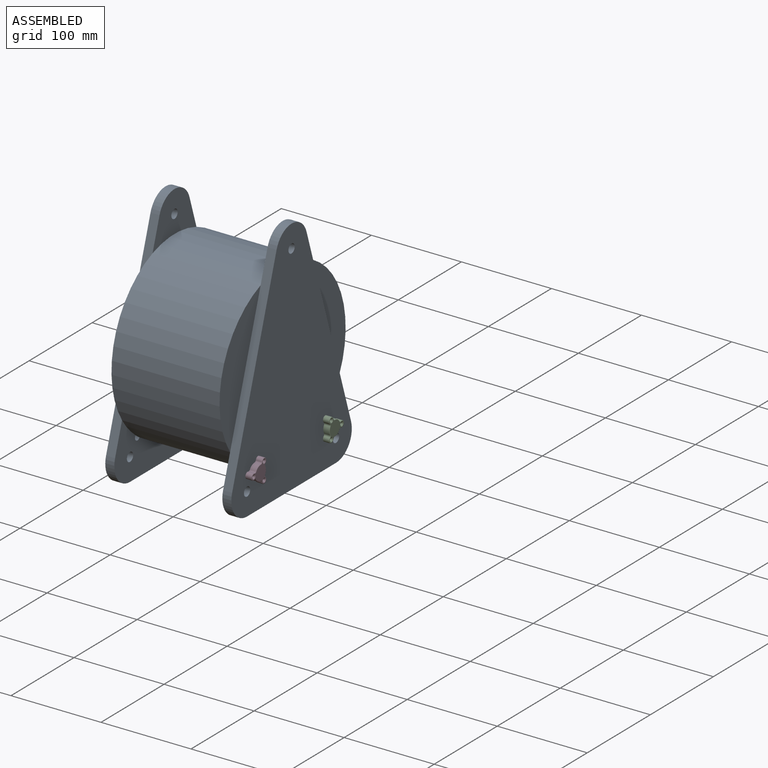
[diagram: assembled view]
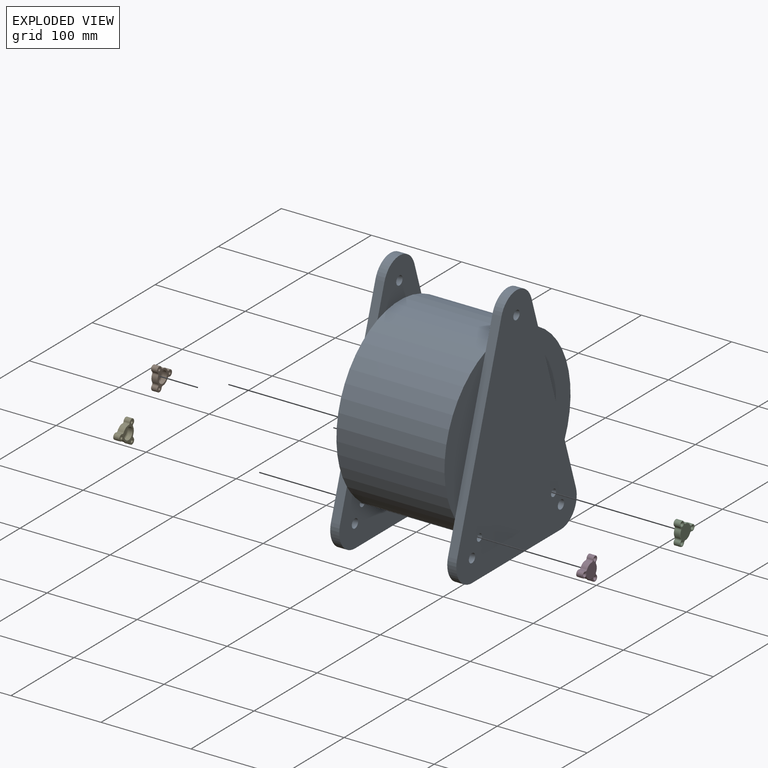
[diagram: exploded view]
GUIDED TOUR — MATED ASSEMBLY (Onshape document 58fb011b6bf305112ffab014, AutoMate assembly 58fb011b6bf305112ffab014_e438020ce8ab903a97dd2762_552a6a392bd03f7f23723d46_default)

This assembly has 5 components, labeled P0..P4 below (a component is one placed occurrence of a part; the same part can appear more than once), held together by 4 mates. A mate is a constraint between two components; its type names the relative motion it leaves free:
  FASTENED — locks the two components together rigidly (no relative motion).
Axis/direction vectors are unit vectors and 'through' points are millimeter coordinates, both in the assembly's world frame.

MATES
  1. FASTENED "Fastened 4": P4 <-> P0, direction (1.000, 0.000, 0.000) through (-78.43, -58.79, -88.06) mm
  2. FASTENED "Fastened 1": P3 <-> P0, direction (-1.000, 0.000, 0.000) through (61.57, -58.79, -88.06) mm
  3. FASTENED "Fastened 3": P1 <-> P0, direction (1.000, 0.000, 0.000) through (-78.43, 58.77, -88.06) mm
  4. FASTENED "Fastened 2": P2 <-> P0, direction (-1.000, 0.000, 0.000) through (61.57, 58.77, -88.06) mm

ASSEMBLY ORDER
  1. P4 — the base component [order verified]
  2. P1 [order verified]
  3. P0 [order verified]
  4. P3 [order verified]
  5. P2 [order verified]
Order-tag legend:
  [order verified] — this step's position reverses a verified removal order: the component was checked to insert without passing through the ones already placed.

Of the 5 components, 5 carry the full construction recipe — the FeatureScript program that regenerates the part's solid from scratch; the rest are supplied as boundary geometry only.
Each toured component is shown spotlighted twice — in the assembled view, then in the exploded view, where a leader line traces a displaced component back to its assembled socket (saturated green if recipe-attached, orange if geometry-only; every other component desaturated gray) — followed by its recipe or geometry summary and the mates that hold it.
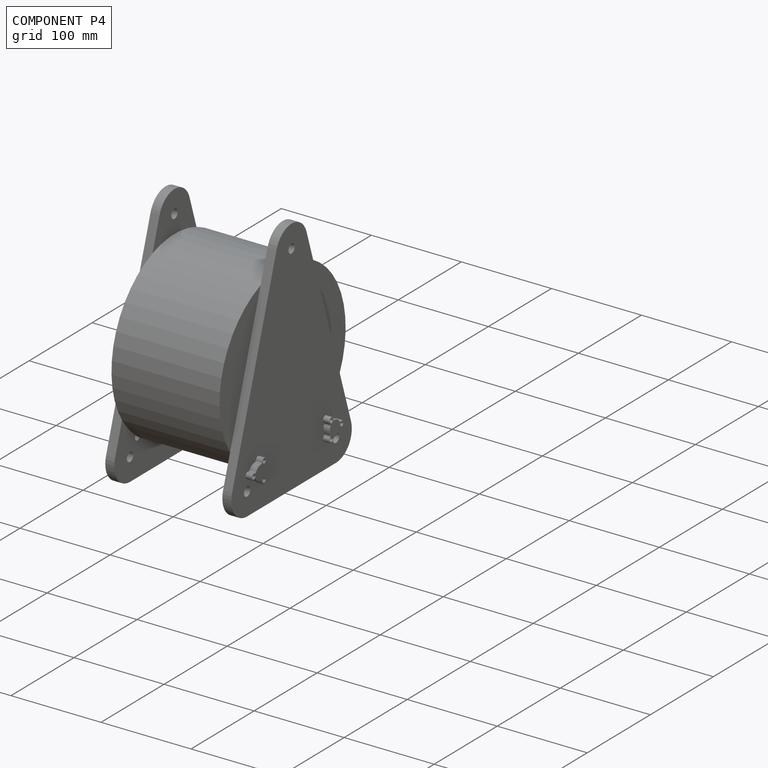
[diagram: component P4 — assembled]
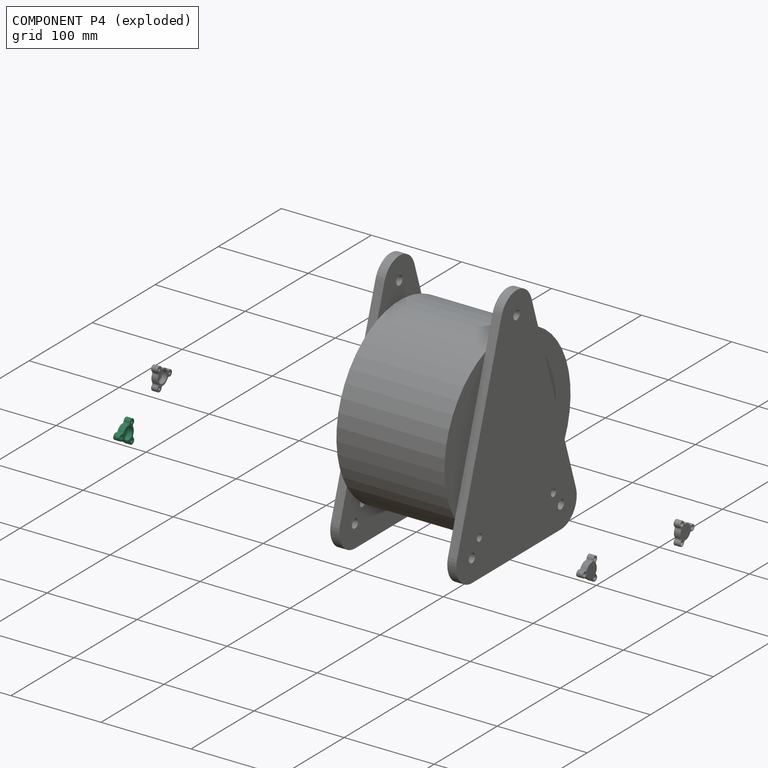
[diagram: component P4 — exploded]
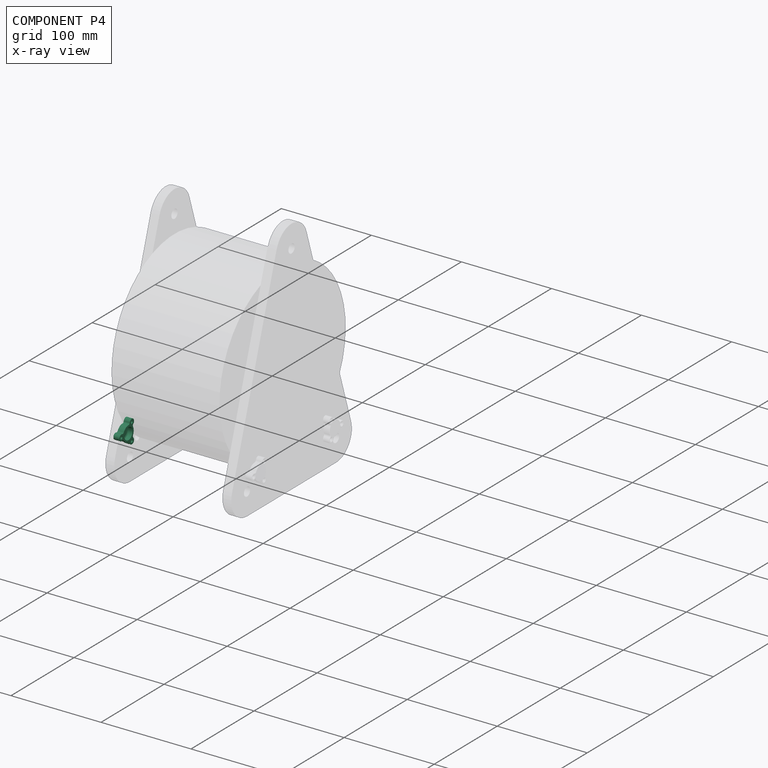
[diagram: component P4 — x-ray view]
COMPONENT P4 — same part as P1 (CADFS 00729353); its construction recipe is shown at P1.
Held by: FASTENED mate "Fastened 4" to P0.
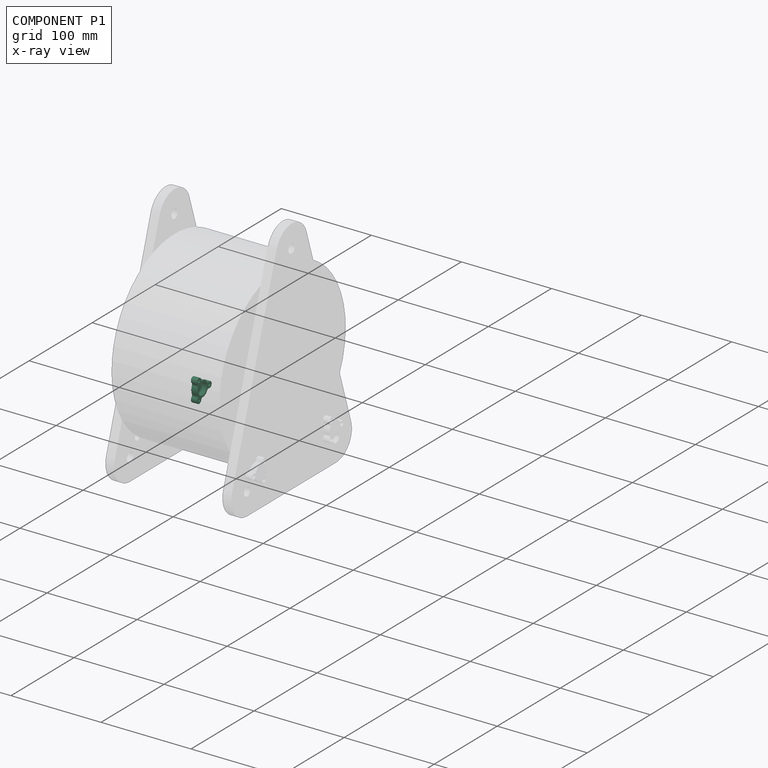
[diagram: component P1 — x-ray view]
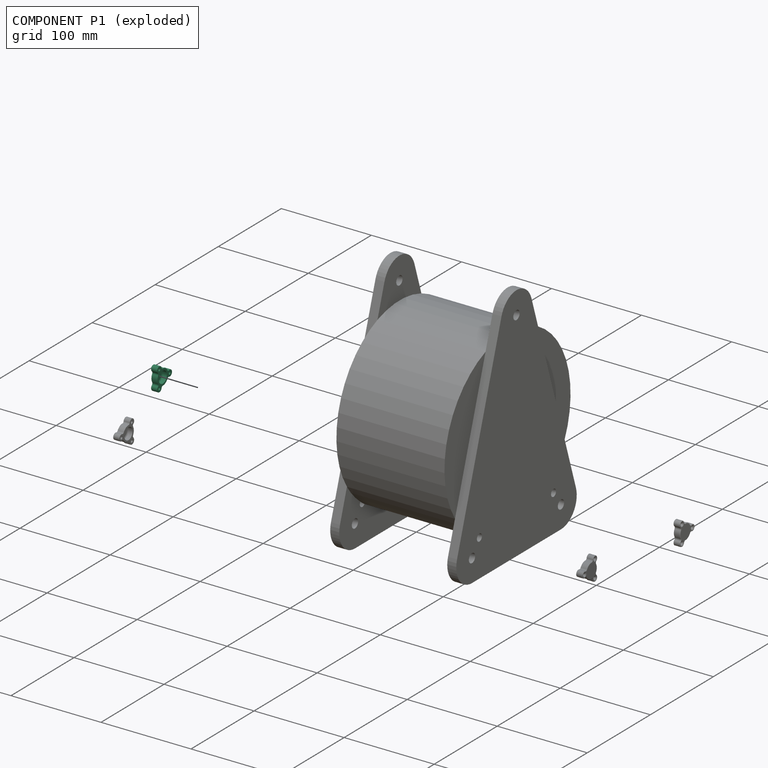
[diagram: component P1 — exploded]
COMPONENT P1 — recipe-attached (CADFS 00729353, mesh-verified: the recipe's output STEP matches this component's geometry to below the mesh-comparison resolution (tessellation chordal tolerance ~0.0536 mm)).
Held by: FASTENED mate "Fastened 3" to P0.
Construction recipe (FeatureScript — the CAD program that rebuilds this solid; sketch coordinates are in the units given by the * unit suffixes, e.g. mm):

FeatureScript 1511;
import(path : "onshape/std/geometry.fs", version : "1511.0");
import(path : "onshape/std/common.fs", version : "1511.0");
const mm = millimeter;
const VERTEX = EntityType.VERTEX;
const EDGE = EntityType.EDGE;
const FACE = EntityType.FACE;
const BODY = EntityType.BODY;
function v(x, y){return vector(x, y);}
function OD(order){return orderDisambiguation(order);}
function OSD(set){return originalSetDisambiguation(set);}
function TD(topology){return topologyDisambiguation(topology);}
function TDD(query){return trueDependencyDisambiguation(query);}
function sQuery(a, b, c) {return sketchEntityQuery(a, b, c);}

annotation { "Feature Type Name" : "Feature", "Feature Type Description" : "" }
export const myFeature = defineFeature(function(context is Context, id is Id, definition is map)
    precondition{}
    {
        {
            var Q0;
            Q0=qCreatedBy(makeId("Right.planeOp"),FACE);
            var sketch = newSketch(context, id + "F0", { "sketchPlane" : qUnion([Q0])});
            skLineSegment(sketch, "E0", {"start": v(-8.5, 0) * mm, "end": v(-8.5, 7) * mm});
            skLineSegment(sketch, "E1", {"start": v(-8.5, 7) * mm, "end": v(0, 7) * mm});
            skLineSegment(sketch, "E2", {"start": v(0, 7) * mm, "end": v(0, 5.5) * mm});
            skLineSegment(sketch, "E3", {"start": v(-6, 5) * mm, "end": v(-6.5, 5) * mm});
            skLineSegment(sketch, "E4", {"start": v(-6.5, 5) * mm, "end": v(-6.5, 0) * mm});
            skLineSegment(sketch, "E5", {"start": v(-6.5, 0) * mm, "end": v(-8.5, 0) * mm});
            skLineSegment(sketch, "E6.top", {"start": v(-6, 5.5) * mm, "end": v(0, 5.5) * mm});
            skLineSegment(sketch, "E6.left", {"start": v(-6, 5) * mm, "end": v(-6, 5.5) * mm});
            skSolve(sketch);
        }
        {
            var Q0;
            Q0=makeQuery(id+"F0.imprint","IMPRINT",FACE,{"disambiguationData":[TD([[makeQuery(id+"F0.imprint","IMPRINT",EDGE,{"derivedFrom":sQuery(id+"F0.wireOp",EDGE,"E0")}),-1.0]])]});
            var Q1;
            Q1=sQuery(id+"F0.wireOp",EDGE,"E2");
            revolve(context, id + "F1", {"surfaceOperationType" : NewSurfaceOperationType.NEW, "entities" : qUnion([Q0]), "axis" : qUnion([Q1]), "revolveType" : RevolveType.FULL});
        }
        {
            var Q0;
            Q0=qCreatedBy(makeId("Top.planeOp"),FACE);
            var sketch = newSketch(context, id + "F2", { "sketchPlane" : qUnion([Q0])});
            skLineSegment(sketch, "E7", {"start": v(0, 11) * mm, "end": v(0, -13.89) * mm, "construction": true});
            skCircle(sketch, "E8", {"center": v(0, 11) * mm, "radius": 3.5 * mm});
            skCircle(sketch, "E9", {"center": v(0, 11) * mm, "radius": 1.5 * mm});
            skPoint(sketch, "E10", {"position": v(0, 0) * mm});
            skCircle(sketch, "E11.1.0", {"center": v(-9.53, -5.5) * mm, "radius": 3.5 * mm});
            skCircle(sketch, "E11.1.1", {"center": v(-9.53, -5.5) * mm, "radius": 1.5 * mm});
            skCircle(sketch, "E11.2.0", {"center": v(9.53, -5.5) * mm, "radius": 3.5 * mm});
            skCircle(sketch, "E11.2.1", {"center": v(9.53, -5.5) * mm, "radius": 1.5 * mm});
            skSolve(sketch);
        }
        {
            var Q0;
            Q0=makeQuery(id+"F2.imprint","IMPRINT",FACE,{"disambiguationData":[TD([[makeQuery(id+"F2.imprint","IMPRINT",EDGE,{"derivedFrom":sQuery(id+"F2.wireOp",EDGE,"E8")}),1.0]])]});
            var Q1;
            Q1=makeQuery(id+"F2.imprint","IMPRINT",FACE,{"disambiguationData":[TD([[makeQuery(id+"F2.imprint","IMPRINT",EDGE,{"derivedFrom":sQuery(id+"F2.wireOp",EDGE,"E11.1.0")}),1.0]])]});
            var Q2;
            Q2=makeQuery(id+"F2.imprint","IMPRINT",FACE,{"disambiguationData":[TD([[makeQuery(id+"F2.imprint","IMPRINT",EDGE,{"derivedFrom":sQuery(id+"F2.wireOp",EDGE,"E11.2.0")}),1.0]])]});
            extrude(context, id + "F3", {"entities" : qUnion([Q0, Q1, Q2]), "operationType" : NewBodyOperationType.ADD, "depth" : 7 * mm, "offsetDistance" : 25 * mm});
        }
        {
            var Q0;
            Q0=makeQuery(id+"F3.opExtrude","CAP_EDGE",EDGE,{"disambiguationData":[OSD([sQuery(id+"F2.wireOp",EDGE,"E9")])],"isStart":false});
            var Q1;
            Q1=makeQuery(id+"F3.opExtrude","CAP_EDGE",EDGE,{"disambiguationData":[OSD([sQuery(id+"F2.wireOp",EDGE,"E11.1.1")])],"isStart":false});
            var Q2;
            Q2=makeQuery(id+"F3.opExtrude","CAP_EDGE",EDGE,{"disambiguationData":[OSD([sQuery(id+"F2.wireOp",EDGE,"E11.2.1")])],"isStart":false});
            chamfer(context, id + "F4", {"entities" : qUnion([Q0, Q1, Q2]), "width" : 1 * mm, "tangentPropagation" : true});
        }
        {
            var Q0;
            Q0=makeQuery(id+"F3.boolean.opBoolean","INTERSECT",EDGE,{"disambiguationData":[OD(0.0)],"derivedFrom":[makeQuery(id+"F1.opRevolve","SWEPT_FACE",FACE,{"disambiguationData":[OSD([sQuery(id+"F0.wireOp",EDGE,"E0")])]}),makeQuery(id+"F3.opExtrude","SWEPT_FACE",FACE,{"disambiguationData":[OSD([sQuery(id+"F2.wireOp",EDGE,"E8")])]})]});
            var Q1;
            Q1=makeQuery(id+"F3.boolean.opBoolean","INTERSECT",EDGE,{"disambiguationData":[OD(0.0)],"derivedFrom":[makeQuery(id+"F1.opRevolve","SWEPT_FACE",FACE,{"disambiguationData":[OSD([sQuery(id+"F0.wireOp",EDGE,"E0")])]}),makeQuery(id+"F3.opExtrude","SWEPT_FACE",FACE,{"disambiguationData":[OSD([sQuery(id+"F2.wireOp",EDGE,"E11.1.0")])]})]});
            var Q2;
            Q2=makeQuery(id+"F3.boolean.opBoolean","INTERSECT",EDGE,{"disambiguationData":[OD(1.0)],"derivedFrom":[makeQuery(id+"F1.opRevolve","SWEPT_FACE",FACE,{"disambiguationData":[OSD([sQuery(id+"F0.wireOp",EDGE,"E0")])]}),makeQuery(id+"F3.opExtrude","SWEPT_FACE",FACE,{"disambiguationData":[OSD([sQuery(id+"F2.wireOp",EDGE,"E11.1.0")])]})]});
            var Q3;
            Q3=makeQuery(id+"F3.boolean.opBoolean","INTERSECT",EDGE,{"disambiguationData":[OD(1.0)],"derivedFrom":[makeQuery(id+"F1.opRevolve","SWEPT_FACE",FACE,{"disambiguationData":[OSD([sQuery(id+"F0.wireOp",EDGE,"E0")])]}),makeQuery(id+"F3.opExtrude","SWEPT_FACE",FACE,{"disambiguationData":[OSD([sQuery(id+"F2.wireOp",EDGE,"E11.2.0")])]})]});
            var Q4;
            Q4=makeQuery(id+"F3.boolean.opBoolean","INTERSECT",EDGE,{"disambiguationData":[OD(0.0)],"derivedFrom":[makeQuery(id+"F1.opRevolve","SWEPT_FACE",FACE,{"disambiguationData":[OSD([sQuery(id+"F0.wireOp",EDGE,"E0")])]}),makeQuery(id+"F3.opExtrude","SWEPT_FACE",FACE,{"disambiguationData":[OSD([sQuery(id+"F2.wireOp",EDGE,"E11.2.0")])]})]});
            var Q5;
            Q5=makeQuery(id+"F3.boolean.opBoolean","INTERSECT",EDGE,{"disambiguationData":[OD(1.0)],"derivedFrom":[makeQuery(id+"F1.opRevolve","SWEPT_FACE",FACE,{"disambiguationData":[OSD([sQuery(id+"F0.wireOp",EDGE,"E0")])]}),makeQuery(id+"F3.opExtrude","SWEPT_FACE",FACE,{"disambiguationData":[OSD([sQuery(id+"F2.wireOp",EDGE,"E8")])]})]});
            fillet(context, id + "F5", {"entities" : qUnion([Q0, Q1, Q2, Q3, Q4, Q5]), "radius" : 2 * mm, "tangentPropagation" : true, "allowEdgeOverflow" : false});
        }
        {
            var Q0;
            {var subQ0=sQuery(id+"F2.wireOp",EDGE,"E11.1.0");var subQ1=sQuery(id+"F0.wireOp",EDGE,"E1");var subQ2=sQuery(id+"F0.wireOp",EDGE,"E0");var subQ3=sQuery(id+"F2.wireOp",EDGE,"E11.2.0");Q0=makeQuery(id+"F3.boolean.opBoolean","SPLIT",EDGE,{"disambiguationData":[TD([makeQuery(id+"F1.opRevolve","SWEPT_FACE",FACE,{"disambiguationData":[OSD([subQ2])]}),makeQuery(id+"F1.opRevolve","SWEPT_FACE",FACE,{"disambiguationData":[OSD([subQ1])]}),makeQuery(id+"F3.opExtrude","CAP_FACE",FACE,{"disambiguationData":[OSD([sQuery(id+"F2.wireOp",EDGE,"E8"),sQuery(id+"F2.wireOp",EDGE,"E9")])],"isStart":false}),makeQuery(id+"F3.opExtrude","SWEPT_FACE",FACE,{"disambiguationData":[OSD([subQ0])]}),makeQuery(id+"F3.opExtrude","CAP_FACE",FACE,{"disambiguationData":[OSD([subQ0,sQuery(id+"F2.wireOp",EDGE,"E11.1.1")])],"isStart":false}),makeQuery(id+"F3.opExtrude","SWEPT_FACE",FACE,{"disambiguationData":[OSD([subQ3])]}),makeQuery(id+"F3.opExtrude","CAP_FACE",FACE,{"disambiguationData":[OSD([subQ3,sQuery(id+"F2.wireOp",EDGE,"E11.2.1")])],"isStart":false})])],"derivedFrom":makeQuery(id+"F1.opRevolve","SWEPT_EDGE",EDGE,{"disambiguationData":[OSD([subQ2,subQ1])]})});}
            var Q1;
            {var subQ0=sQuery(id+"F2.wireOp",EDGE,"E11.1.0");Q1=makeQuery(id+"F5.opFillet","BLEND_EDGE",EDGE,{"blendedFrom":[makeQuery(id+"F3.boolean.opBoolean","INTERSECT",EDGE,{"disambiguationData":[OD(1.0)],"derivedFrom":[makeQuery(id+"F1.opRevolve","SWEPT_FACE",FACE,{"disambiguationData":[OSD([sQuery(id+"F0.wireOp",EDGE,"E0")])]}),makeQuery(id+"F3.opExtrude","SWEPT_FACE",FACE,{"disambiguationData":[OSD([subQ0])]})]}),makeQuery(id+"F3.boolean.opBoolean","MERGE",FACE,{"derivedFrom":[makeQuery(id+"F1.opRevolve","SWEPT_FACE",FACE,{"disambiguationData":[OSD([sQuery(id+"F0.wireOp",EDGE,"E1")])]}),makeQuery(id+"F3.opExtrude","CAP_FACE",FACE,{"disambiguationData":[OSD([sQuery(id+"F2.wireOp",EDGE,"E8"),sQuery(id+"F2.wireOp",EDGE,"E9")])],"isStart":false}),makeQuery(id+"F3.opExtrude","CAP_FACE",FACE,{"disambiguationData":[OSD([subQ0,sQuery(id+"F2.wireOp",EDGE,"E11.1.1")])],"isStart":false}),makeQuery(id+"F3.opExtrude","CAP_FACE",FACE,{"disambiguationData":[OSD([sQuery(id+"F2.wireOp",EDGE,"E11.2.0"),sQuery(id+"F2.wireOp",EDGE,"E11.2.1")])],"isStart":false})]})],"blendedInto":[makeQuery(id+"F3.boolean.opBoolean","MERGE",FACE,{"derivedFrom":[makeQuery(id+"F1.opRevolve","SWEPT_FACE",FACE,{"disambiguationData":[OSD([sQuery(id+"F0.wireOp",EDGE,"E1")])]}),makeQuery(id+"F3.opExtrude","CAP_FACE",FACE,{"disambiguationData":[OSD([sQuery(id+"F2.wireOp",EDGE,"E8"),sQuery(id+"F2.wireOp",EDGE,"E9")])],"isStart":false}),makeQuery(id+"F3.opExtrude","CAP_FACE",FACE,{"disambiguationData":[OSD([subQ0,sQuery(id+"F2.wireOp",EDGE,"E11.1.1")])],"isStart":false}),makeQuery(id+"F3.opExtrude","CAP_FACE",FACE,{"disambiguationData":[OSD([sQuery(id+"F2.wireOp",EDGE,"E11.2.0"),sQuery(id+"F2.wireOp",EDGE,"E11.2.1")])],"isStart":false})]})]});}
            var Q2;
            Q2=makeQuery(id+"F3.opExtrude","CAP_EDGE",EDGE,{"disambiguationData":[OSD([sQuery(id+"F2.wireOp",EDGE,"E11.1.0")])],"isStart":false});
            var Q3;
            {var subQ0=sQuery(id+"F2.wireOp",EDGE,"E11.1.0");Q3=makeQuery(id+"F5.opFillet","BLEND_EDGE",EDGE,{"blendedFrom":[makeQuery(id+"F3.boolean.opBoolean","INTERSECT",EDGE,{"disambiguationData":[OD(0.0)],"derivedFrom":[makeQuery(id+"F1.opRevolve","SWEPT_FACE",FACE,{"disambiguationData":[OSD([sQuery(id+"F0.wireOp",EDGE,"E0")])]}),makeQuery(id+"F3.opExtrude","SWEPT_FACE",FACE,{"disambiguationData":[OSD([subQ0])]})]}),makeQuery(id+"F3.boolean.opBoolean","MERGE",FACE,{"derivedFrom":[makeQuery(id+"F1.opRevolve","SWEPT_FACE",FACE,{"disambiguationData":[OSD([sQuery(id+"F0.wireOp",EDGE,"E1")])]}),makeQuery(id+"F3.opExtrude","CAP_FACE",FACE,{"disambiguationData":[OSD([sQuery(id+"F2.wireOp",EDGE,"E8"),sQuery(id+"F2.wireOp",EDGE,"E9")])],"isStart":false}),makeQuery(id+"F3.opExtrude","CAP_FACE",FACE,{"disambiguationData":[OSD([subQ0,sQuery(id+"F2.wireOp",EDGE,"E11.1.1")])],"isStart":false}),makeQuery(id+"F3.opExtrude","CAP_FACE",FACE,{"disambiguationData":[OSD([sQuery(id+"F2.wireOp",EDGE,"E11.2.0"),sQuery(id+"F2.wireOp",EDGE,"E11.2.1")])],"isStart":false})]})],"blendedInto":[makeQuery(id+"F3.boolean.opBoolean","MERGE",FACE,{"derivedFrom":[makeQuery(id+"F1.opRevolve","SWEPT_FACE",FACE,{"disambiguationData":[OSD([sQuery(id+"F0.wireOp",EDGE,"E1")])]}),makeQuery(id+"F3.opExtrude","CAP_FACE",FACE,{"disambiguationData":[OSD([sQuery(id+"F2.wireOp",EDGE,"E8"),sQuery(id+"F2.wireOp",EDGE,"E9")])],"isStart":false}),makeQuery(id+"F3.opExtrude","CAP_FACE",FACE,{"disambiguationData":[OSD([subQ0,sQuery(id+"F2.wireOp",EDGE,"E11.1.1")])],"isStart":false}),makeQuery(id+"F3.opExtrude","CAP_FACE",FACE,{"disambiguationData":[OSD([sQuery(id+"F2.wireOp",EDGE,"E11.2.0"),sQuery(id+"F2.wireOp",EDGE,"E11.2.1")])],"isStart":false})]})]});}
            var Q4;
            {var subQ0=sQuery(id+"F2.wireOp",EDGE,"E8");var subQ1=sQuery(id+"F0.wireOp",EDGE,"E1");var subQ2=sQuery(id+"F0.wireOp",EDGE,"E0");var subQ3=sQuery(id+"F2.wireOp",EDGE,"E11.1.0");Q4=makeQuery(id+"F3.boolean.opBoolean","SPLIT",EDGE,{"disambiguationData":[TD([makeQuery(id+"F1.opRevolve","SWEPT_FACE",FACE,{"disambiguationData":[OSD([subQ2])]}),makeQuery(id+"F1.opRevolve","SWEPT_FACE",FACE,{"disambiguationData":[OSD([subQ1])]}),makeQuery(id+"F3.opExtrude","SWEPT_FACE",FACE,{"disambiguationData":[OSD([subQ0])]}),makeQuery(id+"F3.opExtrude","CAP_FACE",FACE,{"disambiguationData":[OSD([subQ0,sQuery(id+"F2.wireOp",EDGE,"E9")])],"isStart":false}),makeQuery(id+"F3.opExtrude","SWEPT_FACE",FACE,{"disambiguationData":[OSD([subQ3])]}),makeQuery(id+"F3.opExtrude","CAP_FACE",FACE,{"disambiguationData":[OSD([subQ3,sQuery(id+"F2.wireOp",EDGE,"E11.1.1")])],"isStart":false}),makeQuery(id+"F3.opExtrude","CAP_FACE",FACE,{"disambiguationData":[OSD([sQuery(id+"F2.wireOp",EDGE,"E11.2.0"),sQuery(id+"F2.wireOp",EDGE,"E11.2.1")])],"isStart":false})])],"derivedFrom":makeQuery(id+"F1.opRevolve","SWEPT_EDGE",EDGE,{"disambiguationData":[OSD([subQ2,subQ1])]})});}
            var Q5;
            {var subQ0=sQuery(id+"F2.wireOp",EDGE,"E8");Q5=makeQuery(id+"F5.opFillet","BLEND_EDGE",EDGE,{"blendedFrom":[makeQuery(id+"F3.boolean.opBoolean","INTERSECT",EDGE,{"disambiguationData":[OD(0.0)],"derivedFrom":[makeQuery(id+"F1.opRevolve","SWEPT_FACE",FACE,{"disambiguationData":[OSD([sQuery(id+"F0.wireOp",EDGE,"E0")])]}),makeQuery(id+"F3.opExtrude","SWEPT_FACE",FACE,{"disambiguationData":[OSD([subQ0])]})]}),makeQuery(id+"F3.boolean.opBoolean","MERGE",FACE,{"derivedFrom":[makeQuery(id+"F1.opRevolve","SWEPT_FACE",FACE,{"disambiguationData":[OSD([sQuery(id+"F0.wireOp",EDGE,"E1")])]}),makeQuery(id+"F3.opExtrude","CAP_FACE",FACE,{"disambiguationData":[OSD([subQ0,sQuery(id+"F2.wireOp",EDGE,"E9")])],"isStart":false}),makeQuery(id+"F3.opExtrude","CAP_FACE",FACE,{"disambiguationData":[OSD([sQuery(id+"F2.wireOp",EDGE,"E11.1.0"),sQuery(id+"F2.wireOp",EDGE,"E11.1.1")])],"isStart":false}),makeQuery(id+"F3.opExtrude","CAP_FACE",FACE,{"disambiguationData":[OSD([sQuery(id+"F2.wireOp",EDGE,"E11.2.0"),sQuery(id+"F2.wireOp",EDGE,"E11.2.1")])],"isStart":false})]})],"blendedInto":[makeQuery(id+"F3.boolean.opBoolean","MERGE",FACE,{"derivedFrom":[makeQuery(id+"F1.opRevolve","SWEPT_FACE",FACE,{"disambiguationData":[OSD([sQuery(id+"F0.wireOp",EDGE,"E1")])]}),makeQuery(id+"F3.opExtrude","CAP_FACE",FACE,{"disambiguationData":[OSD([subQ0,sQuery(id+"F2.wireOp",EDGE,"E9")])],"isStart":false}),makeQuery(id+"F3.opExtrude","CAP_FACE",FACE,{"disambiguationData":[OSD([sQuery(id+"F2.wireOp",EDGE,"E11.1.0"),sQuery(id+"F2.wireOp",EDGE,"E11.1.1")])],"isStart":false}),makeQuery(id+"F3.opExtrude","CAP_FACE",FACE,{"disambiguationData":[OSD([sQuery(id+"F2.wireOp",EDGE,"E11.2.0"),sQuery(id+"F2.wireOp",EDGE,"E11.2.1")])],"isStart":false})]})]});}
            var Q6;
            Q6=makeQuery(id+"F3.opExtrude","CAP_EDGE",EDGE,{"disambiguationData":[OSD([sQuery(id+"F2.wireOp",EDGE,"E8")])],"isStart":false});
            var Q7;
            {var subQ0=sQuery(id+"F2.wireOp",EDGE,"E8");var subQ1=sQuery(id+"F0.wireOp",EDGE,"E1");var subQ2=sQuery(id+"F0.wireOp",EDGE,"E0");var subQ3=sQuery(id+"F2.wireOp",EDGE,"E11.2.0");Q7=makeQuery(id+"F3.boolean.opBoolean","SPLIT",EDGE,{"disambiguationData":[TD([makeQuery(id+"F1.opRevolve","SWEPT_FACE",FACE,{"disambiguationData":[OSD([subQ2])]}),makeQuery(id+"F1.opRevolve","SWEPT_FACE",FACE,{"disambiguationData":[OSD([subQ1])]}),makeQuery(id+"F3.opExtrude","SWEPT_FACE",FACE,{"disambiguationData":[OSD([subQ0])]}),makeQuery(id+"F3.opExtrude","CAP_FACE",FACE,{"disambiguationData":[OSD([subQ0,sQuery(id+"F2.wireOp",EDGE,"E9")])],"isStart":false}),makeQuery(id+"F3.opExtrude","CAP_FACE",FACE,{"disambiguationData":[OSD([sQuery(id+"F2.wireOp",EDGE,"E11.1.0"),sQuery(id+"F2.wireOp",EDGE,"E11.1.1")])],"isStart":false}),makeQuery(id+"F3.opExtrude","SWEPT_FACE",FACE,{"disambiguationData":[OSD([subQ3])]}),makeQuery(id+"F3.opExtrude","CAP_FACE",FACE,{"disambiguationData":[OSD([subQ3,sQuery(id+"F2.wireOp",EDGE,"E11.2.1")])],"isStart":false})])],"derivedFrom":makeQuery(id+"F1.opRevolve","SWEPT_EDGE",EDGE,{"disambiguationData":[OSD([subQ2,subQ1])]})});}
            var Q8;
            {var subQ0=sQuery(id+"F2.wireOp",EDGE,"E8");Q8=makeQuery(id+"F5.opFillet","BLEND_EDGE",EDGE,{"blendedFrom":[makeQuery(id+"F3.boolean.opBoolean","INTERSECT",EDGE,{"disambiguationData":[OD(1.0)],"derivedFrom":[makeQuery(id+"F1.opRevolve","SWEPT_FACE",FACE,{"disambiguationData":[OSD([sQuery(id+"F0.wireOp",EDGE,"E0")])]}),makeQuery(id+"F3.opExtrude","SWEPT_FACE",FACE,{"disambiguationData":[OSD([subQ0])]})]}),makeQuery(id+"F3.boolean.opBoolean","MERGE",FACE,{"derivedFrom":[makeQuery(id+"F1.opRevolve","SWEPT_FACE",FACE,{"disambiguationData":[OSD([sQuery(id+"F0.wireOp",EDGE,"E1")])]}),makeQuery(id+"F3.opExtrude","CAP_FACE",FACE,{"disambiguationData":[OSD([subQ0,sQuery(id+"F2.wireOp",EDGE,"E9")])],"isStart":false}),makeQuery(id+"F3.opExtrude","CAP_FACE",FACE,{"disambiguationData":[OSD([sQuery(id+"F2.wireOp",EDGE,"E11.1.0"),sQuery(id+"F2.wireOp",EDGE,"E11.1.1")])],"isStart":false}),makeQuery(id+"F3.opExtrude","CAP_FACE",FACE,{"disambiguationData":[OSD([sQuery(id+"F2.wireOp",EDGE,"E11.2.0"),sQuery(id+"F2.wireOp",EDGE,"E11.2.1")])],"isStart":false})]})],"blendedInto":[makeQuery(id+"F3.boolean.opBoolean","MERGE",FACE,{"derivedFrom":[makeQuery(id+"F1.opRevolve","SWEPT_FACE",FACE,{"disambiguationData":[OSD([sQuery(id+"F0.wireOp",EDGE,"E1")])]}),makeQuery(id+"F3.opExtrude","CAP_FACE",FACE,{"disambiguationData":[OSD([subQ0,sQuery(id+"F2.wireOp",EDGE,"E9")])],"isStart":false}),makeQuery(id+"F3.opExtrude","CAP_FACE",FACE,{"disambiguationData":[OSD([sQuery(id+"F2.wireOp",EDGE,"E11.1.0"),sQuery(id+"F2.wireOp",EDGE,"E11.1.1")])],"isStart":false}),makeQuery(id+"F3.opExtrude","CAP_FACE",FACE,{"disambiguationData":[OSD([sQuery(id+"F2.wireOp",EDGE,"E11.2.0"),sQuery(id+"F2.wireOp",EDGE,"E11.2.1")])],"isStart":false})]})]});}
            var Q9;
            {var subQ0=sQuery(id+"F2.wireOp",EDGE,"E11.2.0");Q9=makeQuery(id+"F5.opFillet","BLEND_EDGE",EDGE,{"blendedFrom":[makeQuery(id+"F3.boolean.opBoolean","INTERSECT",EDGE,{"disambiguationData":[OD(0.0)],"derivedFrom":[makeQuery(id+"F1.opRevolve","SWEPT_FACE",FACE,{"disambiguationData":[OSD([sQuery(id+"F0.wireOp",EDGE,"E0")])]}),makeQuery(id+"F3.opExtrude","SWEPT_FACE",FACE,{"disambiguationData":[OSD([subQ0])]})]}),makeQuery(id+"F3.boolean.opBoolean","MERGE",FACE,{"derivedFrom":[makeQuery(id+"F1.opRevolve","SWEPT_FACE",FACE,{"disambiguationData":[OSD([sQuery(id+"F0.wireOp",EDGE,"E1")])]}),makeQuery(id+"F3.opExtrude","CAP_FACE",FACE,{"disambiguationData":[OSD([sQuery(id+"F2.wireOp",EDGE,"E8"),sQuery(id+"F2.wireOp",EDGE,"E9")])],"isStart":false}),makeQuery(id+"F3.opExtrude","CAP_FACE",FACE,{"disambiguationData":[OSD([sQuery(id+"F2.wireOp",EDGE,"E11.1.0"),sQuery(id+"F2.wireOp",EDGE,"E11.1.1")])],"isStart":false}),makeQuery(id+"F3.opExtrude","CAP_FACE",FACE,{"disambiguationData":[OSD([subQ0,sQuery(id+"F2.wireOp",EDGE,"E11.2.1")])],"isStart":false})]})],"blendedInto":[makeQuery(id+"F3.boolean.opBoolean","MERGE",FACE,{"derivedFrom":[makeQuery(id+"F1.opRevolve","SWEPT_FACE",FACE,{"disambiguationData":[OSD([sQuery(id+"F0.wireOp",EDGE,"E1")])]}),makeQuery(id+"F3.opExtrude","CAP_FACE",FACE,{"disambiguationData":[OSD([sQuery(id+"F2.wireOp",EDGE,"E8"),sQuery(id+"F2.wireOp",EDGE,"E9")])],"isStart":false}),makeQuery(id+"F3.opExtrude","CAP_FACE",FACE,{"disambiguationData":[OSD([sQuery(id+"F2.wireOp",EDGE,"E11.1.0"),sQuery(id+"F2.wireOp",EDGE,"E11.1.1")])],"isStart":false}),makeQuery(id+"F3.opExtrude","CAP_FACE",FACE,{"disambiguationData":[OSD([subQ0,sQuery(id+"F2.wireOp",EDGE,"E11.2.1")])],"isStart":false})]})]});}
            var Q10;
            Q10=makeQuery(id+"F3.opExtrude","CAP_EDGE",EDGE,{"disambiguationData":[OSD([sQuery(id+"F2.wireOp",EDGE,"E11.2.0")])],"isStart":false});
            var Q11;
            {var subQ0=sQuery(id+"F2.wireOp",EDGE,"E11.2.0");Q11=makeQuery(id+"F5.opFillet","BLEND_EDGE",EDGE,{"blendedFrom":[makeQuery(id+"F3.boolean.opBoolean","INTERSECT",EDGE,{"disambiguationData":[OD(1.0)],"derivedFrom":[makeQuery(id+"F1.opRevolve","SWEPT_FACE",FACE,{"disambiguationData":[OSD([sQuery(id+"F0.wireOp",EDGE,"E0")])]}),makeQuery(id+"F3.opExtrude","SWEPT_FACE",FACE,{"disambiguationData":[OSD([subQ0])]})]}),makeQuery(id+"F3.boolean.opBoolean","MERGE",FACE,{"derivedFrom":[makeQuery(id+"F1.opRevolve","SWEPT_FACE",FACE,{"disambiguationData":[OSD([sQuery(id+"F0.wireOp",EDGE,"E1")])]}),makeQuery(id+"F3.opExtrude","CAP_FACE",FACE,{"disambiguationData":[OSD([sQuery(id+"F2.wireOp",EDGE,"E8"),sQuery(id+"F2.wireOp",EDGE,"E9")])],"isStart":false}),makeQuery(id+"F3.opExtrude","CAP_FACE",FACE,{"disambiguationData":[OSD([sQuery(id+"F2.wireOp",EDGE,"E11.1.0"),sQuery(id+"F2.wireOp",EDGE,"E11.1.1")])],"isStart":false}),makeQuery(id+"F3.opExtrude","CAP_FACE",FACE,{"disambiguationData":[OSD([subQ0,sQuery(id+"F2.wireOp",EDGE,"E11.2.1")])],"isStart":false})]})],"blendedInto":[makeQuery(id+"F3.boolean.opBoolean","MERGE",FACE,{"derivedFrom":[makeQuery(id+"F1.opRevolve","SWEPT_FACE",FACE,{"disambiguationData":[OSD([sQuery(id+"F0.wireOp",EDGE,"E1")])]}),makeQuery(id+"F3.opExtrude","CAP_FACE",FACE,{"disambiguationData":[OSD([sQuery(id+"F2.wireOp",EDGE,"E8"),sQuery(id+"F2.wireOp",EDGE,"E9")])],"isStart":false}),makeQuery(id+"F3.opExtrude","CAP_FACE",FACE,{"disambiguationData":[OSD([sQuery(id+"F2.wireOp",EDGE,"E11.1.0"),sQuery(id+"F2.wireOp",EDGE,"E11.1.1")])],"isStart":false}),makeQuery(id+"F3.opExtrude","CAP_FACE",FACE,{"disambiguationData":[OSD([subQ0,sQuery(id+"F2.wireOp",EDGE,"E11.2.1")])],"isStart":false})]})]});}
            fillet(context, id + "F6", {"entities" : qUnion([Q0, Q1, Q2, Q3, Q4, Q5, Q6, Q7, Q8, Q9, Q10, Q11]), "radius" : 0.5 * mm, "tangentPropagation" : true, "allowEdgeOverflow" : false});
        }
    });
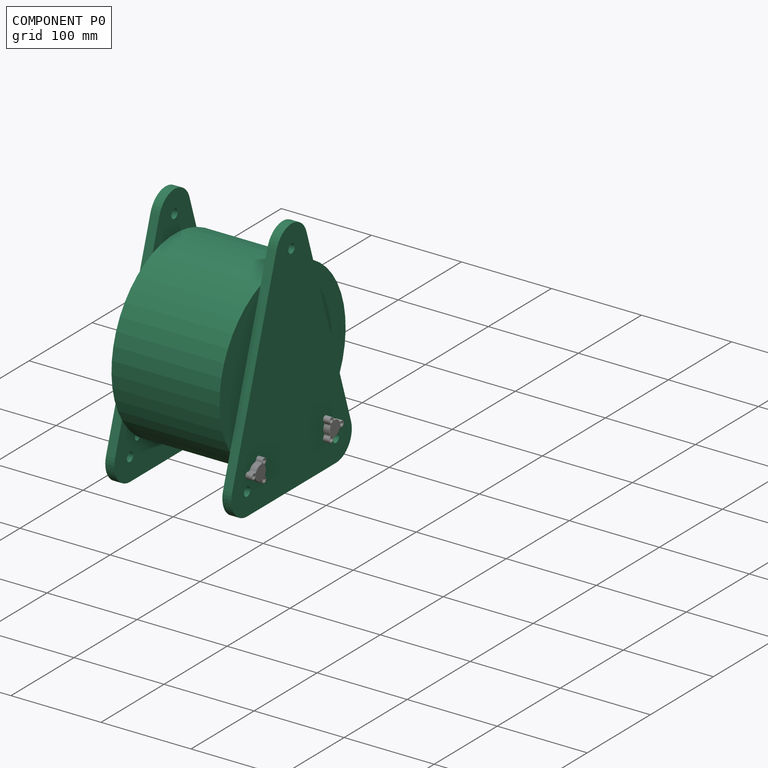
[diagram: component P0 — assembled]
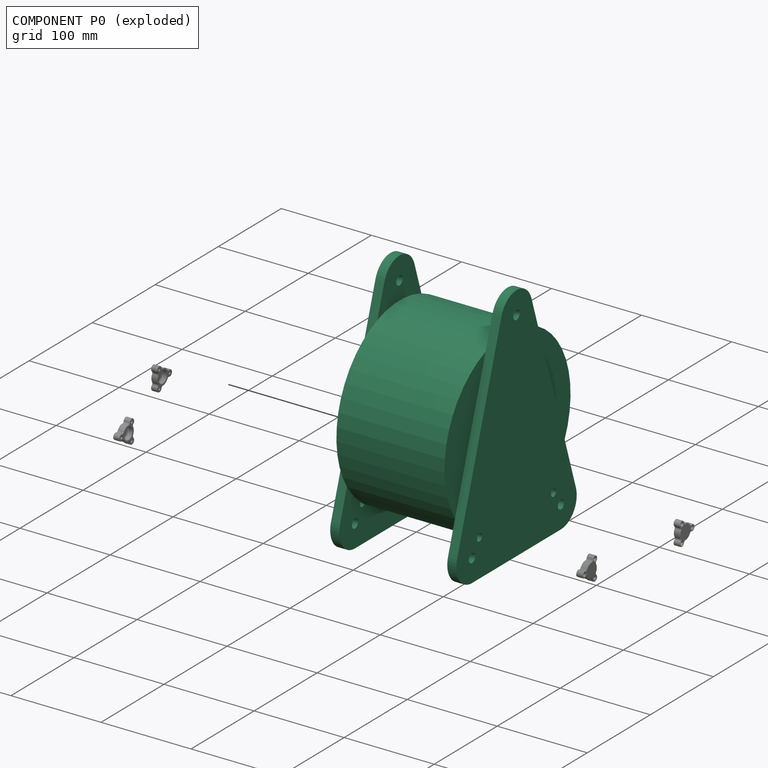
[diagram: component P0 — exploded]
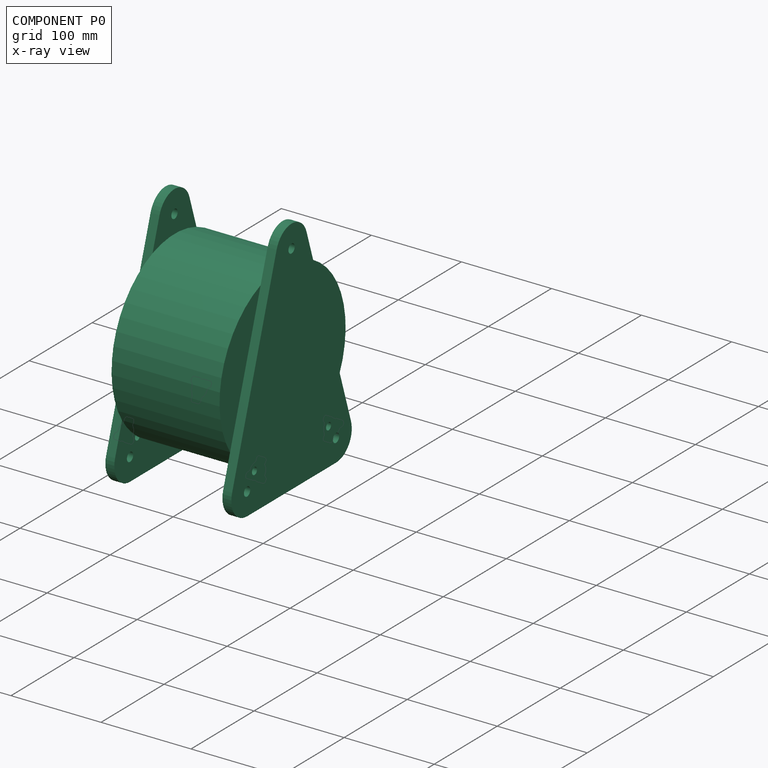
[diagram: component P0 — x-ray view]
COMPONENT P0 — recipe-attached (CADFS 00729352, mesh-verified: the recipe's output STEP matches this component's geometry to below the mesh-comparison resolution (tessellation chordal tolerance ~0.543 mm)).
Held by: FASTENED mate "Fastened 4" to P4; FASTENED mate "Fastened 1" to P3; FASTENED mate "Fastened 3" to P1; FASTENED mate "Fastened 2" to P2.
Construction recipe (FeatureScript — the CAD program that rebuilds this solid; sketch coordinates are in the units given by the * unit suffixes, e.g. mm):

FeatureScript 1511;
import(path : "onshape/std/geometry.fs", version : "1511.0");
import(path : "onshape/std/common.fs", version : "1511.0");
const mm = millimeter;
const VERTEX = EntityType.VERTEX;
const EDGE = EntityType.EDGE;
const FACE = EntityType.FACE;
const BODY = EntityType.BODY;
function v(x, y){return vector(x, y);}
function OD(order){return orderDisambiguation(order);}
function OSD(set){return originalSetDisambiguation(set);}
function TD(topology){return topologyDisambiguation(topology);}
function TDD(query){return trueDependencyDisambiguation(query);}
function sQuery(a, b, c) {return sketchEntityQuery(a, b, c);}

annotation { "Feature Type Name" : "Feature", "Feature Type Description" : "" }
export const myFeature = defineFeature(function(context is Context, id is Id, definition is map)
    precondition{}
    {
        {
            var Q0;
            Q0=qCreatedBy(makeId("Right.planeOp"),FACE);
            var sketch = newSketch(context, id + "F0", { "sketchPlane" : qUnion([Q0])});
            skCircle(sketch, "E0", {"center": v(0, 0) * mm, "radius": 100 * mm});
            skCircle(sketch, "E1", {"center": v(0, 0) * mm, "radius": 16 * mm});
            skSolve(sketch);
        }
        {
            var Q0;
            Q0=makeQuery(id+"F0.imprint","IMPRINT",FACE,{"disambiguationData":[TD([[makeQuery(id+"F0.imprint","IMPRINT",EDGE,{"derivedFrom":sQuery(id+"F0.wireOp",EDGE,"E0")}),1.0]])]});
            extrude(context, id + "F1", {"entities" : qUnion([Q0]), "depth" : 60 * mm, "offsetDistance" : 25 * mm});
        }
        {
            var Q0;
            Q0=makeQuery(id+"F1.opExtrude","CAP_FACE",FACE,{"disambiguationData":[OSD([sQuery(id+"F0.wireOp",EDGE,"E0"),sQuery(id+"F0.wireOp",EDGE,"E1")])],"isStart":false});
            var sketch = newSketch(context, id + "F2", { "sketchPlane" : qUnion([Q0])});
            skLineSegment(sketch, "E2", {"start": v(0, 0) * mm, "end": v(0, 120) * mm, "construction": true});
            skLineSegment(sketch, "E3.2.0", {"start": v(0, 0) * mm, "end": v(-70.53, -97.08) * mm, "construction": true});
            skLineSegment(sketch, "E3.3.0", {"start": v(0, 0) * mm, "end": v(70.53, -97.08) * mm, "construction": true});
            skPoint(sketch, "E3.center", {"position": v(0, 0) * mm});
            skArc(sketch, "E4", {"start": v(-94.31, -89.36) * mm, "mid": v(-90.76, -111.78) * mm, "end": v(-70.53, -122.08) * mm});
            skArc(sketch, "E5", {"start": v(70.53, -122.08) * mm, "mid": v(90.76, -111.78) * mm, "end": v(94.31, -89.36) * mm});
            skLineSegment(sketch, "E6", {"start": v(0, 120) * mm, "end": v(-70.53, -97.08) * mm, "construction": true});
            skLineSegment(sketch, "E7", {"start": v(70.53, -97.08) * mm, "end": v(0, 120) * mm, "construction": true});
            skLineSegment(sketch, "E8", {"start": v(70.53, -97.08) * mm, "end": v(-70.53, -97.08) * mm, "construction": true});
            skLineSegment(sketch, "E9", {"start": v(-23.78, 127.73) * mm, "end": v(-94.31, -89.36) * mm});
            skLineSegment(sketch, "E10", {"start": v(23.78, 127.73) * mm, "end": v(94.31, -89.36) * mm});
            skLineSegment(sketch, "E11", {"start": v(-70.53, -122.08) * mm, "end": v(70.53, -122.08) * mm});
            skPoint(sketch, "E12", {"position": v(-94.31, -89.36) * mm});
            skPoint(sketch, "E13", {"position": v(-70.53, -122.08) * mm});
            skPoint(sketch, "E14", {"position": v(70.53, -122.08) * mm});
            skPoint(sketch, "E15", {"position": v(94.31, -89.36) * mm});
            skPoint(sketch, "E16", {"position": v(23.78, 127.73) * mm});
            skPoint(sketch, "E17", {"position": v(-23.78, 127.73) * mm});
            skArc(sketch, "E18.trimOffspring", {"start": v(23.78, 127.73) * mm, "mid": v(0, 145) * mm, "end": v(-23.78, 127.73) * mm});
            skPoint(sketch, "E19", {"position": v(-58.78, -80.9) * mm});
            skPoint(sketch, "E20", {"position": v(58.78, -80.9) * mm});
            skCircle(sketch, "E21", {"center": v(-58.78, -80.9) * mm, "radius": 4 * mm});
            skCircle(sketch, "E22", {"center": v(58.78, -80.9) * mm, "radius": 4 * mm});
            skCircle(sketch, "E23", {"center": v(-70.53, -97.08) * mm, "radius": 5 * mm});
            skCircle(sketch, "E24", {"center": v(70.53, -97.08) * mm, "radius": 5 * mm});
            skCircle(sketch, "E25", {"center": v(0, 120) * mm, "radius": 5 * mm});
            skSolve(sketch);
        }
        {
            var Q0;
            {var subQ9=sQuery(id+"F2.wireOp",EDGE,"E4");Q0=makeQuery(id+"F2.imprint","IMPRINT",FACE,{"disambiguationData":[TD([[makeQuery(id+"F2.imprint","IMPRINT",EDGE,{"derivedFrom":subQ9}),1.0]])]});}
            var Q1;
            Q1=makeQuery(id+"F2.imprint","IMPRINT",FACE,{"disambiguationData":[TD([[makeQuery(id+"F2.imprint","IMPRINT",EDGE,{"derivedFrom":makeQuery(id+"F1.opExtrude","CAP_EDGE",EDGE,{"disambiguationData":[OSD([sQuery(id+"F0.wireOp",EDGE,"E1")])],"isStart":false})}),-1.0]])]});
            var Q2;
            {var subQ0=sQuery(id+"F2.wireOp",EDGE,"E18.trimOffspring");Q2=makeQuery(id+"F2.imprint","IMPRINT",FACE,{"disambiguationData":[TD([[makeQuery(id+"F2.imprint","IMPRINT",EDGE,{"derivedFrom":subQ0}),1.0]])]});}
            var Q3;
            Q3=makeQuery(id+"F2.imprint","IMPRINT",FACE,{"disambiguationData":[TD([[makeQuery(id+"F2.imprint","IMPRINT",EDGE,{"derivedFrom":makeQuery(id+"F1.opExtrude","CAP_EDGE",EDGE,{"disambiguationData":[OSD([sQuery(id+"F0.wireOp",EDGE,"E1")])],"isStart":false})}),1.0]])]});
            extrude(context, id + "F3", {"entities" : qUnion([Q0, Q1, Q2, Q3]), "operationType" : NewBodyOperationType.ADD, "depth" : 10 * mm, "offsetDistance" : 25 * mm});
        }
        {
            var Q0;
            Q0=makeQuery(id+"F1.opExtrude","SWEPT_BODY",BODY,{"disambiguationData":[OSD([sQuery(id+"F0.wireOp",EDGE,"E0"),sQuery(id+"F0.wireOp",EDGE,"E1")])]});
            var Q1;
            Q1=makeQuery(id+"F1.opExtrude","CAP_FACE",FACE,{"disambiguationData":[OSD([sQuery(id+"F0.wireOp",EDGE,"E0"),sQuery(id+"F0.wireOp",EDGE,"E1")])],"isStart":true});
            mirror(context, id + "F4", {"operationType" : NewBodyOperationType.ADD, "entities" : qUnion([Q0]), "mirrorPlane" : qUnion([Q1])});
        }
    });
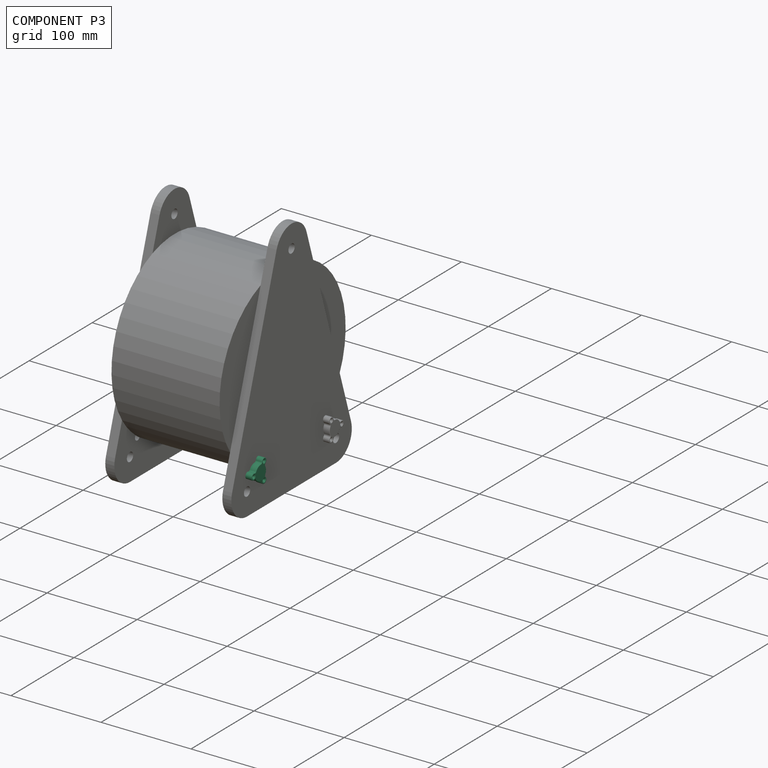
[diagram: component P3 — assembled]
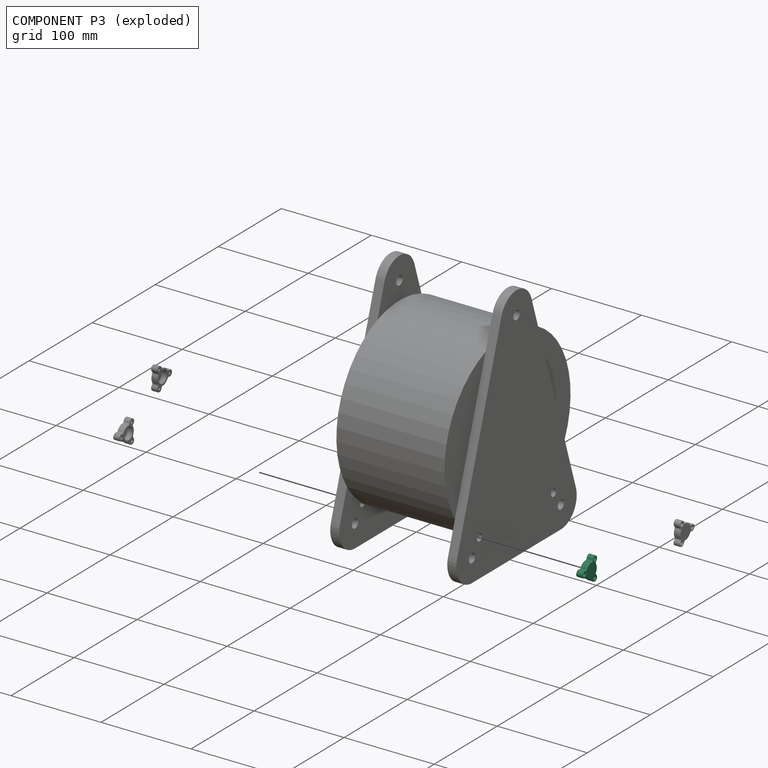
[diagram: component P3 — exploded]
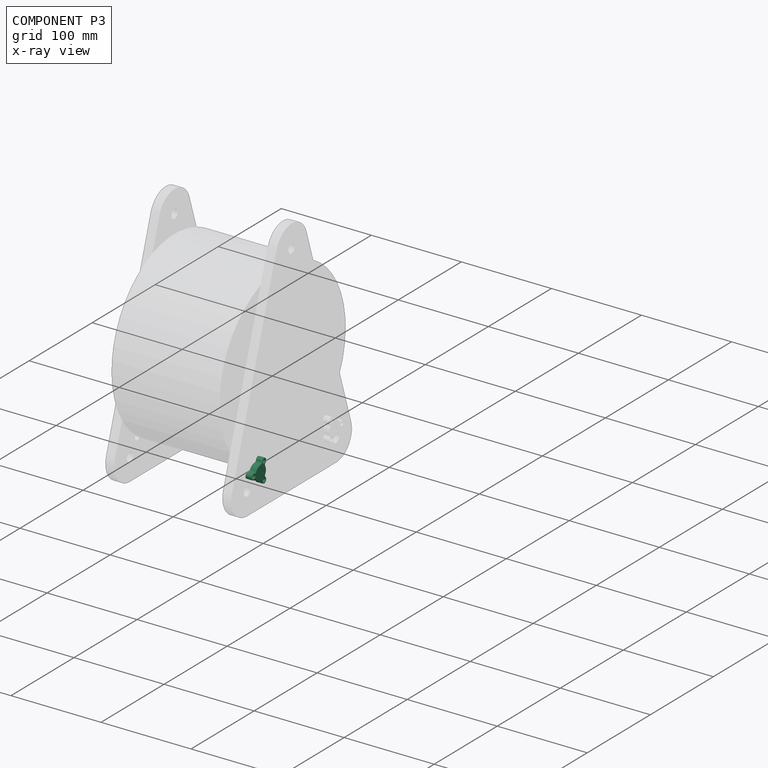
[diagram: component P3 — x-ray view]
COMPONENT P3 — same part as P1 (CADFS 00729353); its construction recipe is shown at P1.
Held by: FASTENED mate "Fastened 1" to P0.
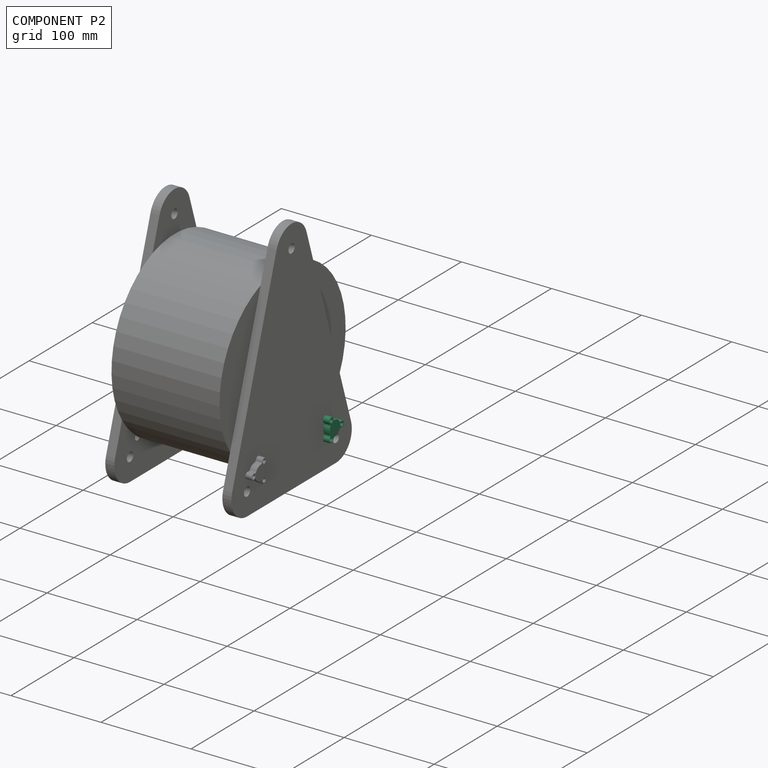
[diagram: component P2 — assembled]
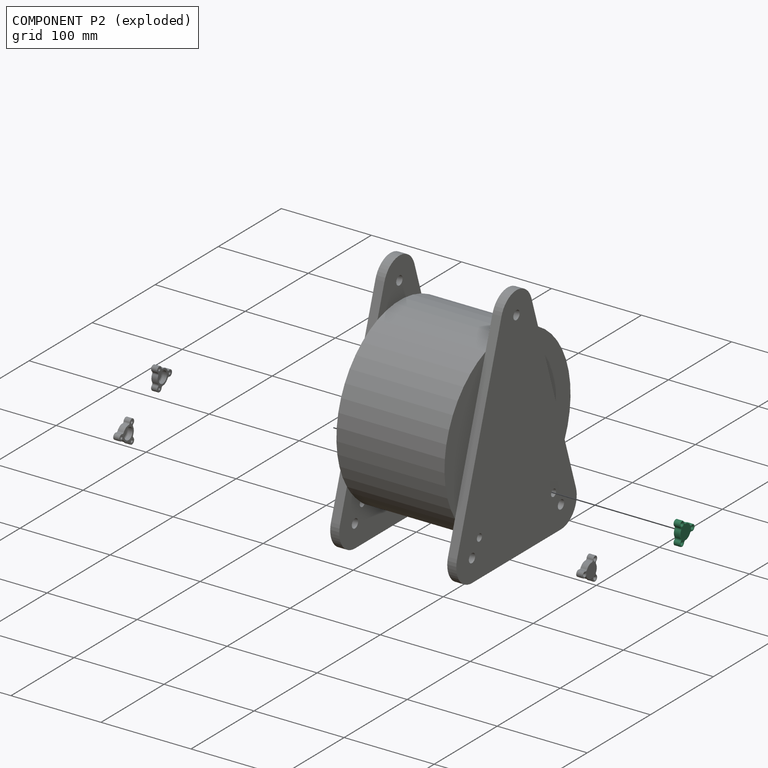
[diagram: component P2 — exploded]
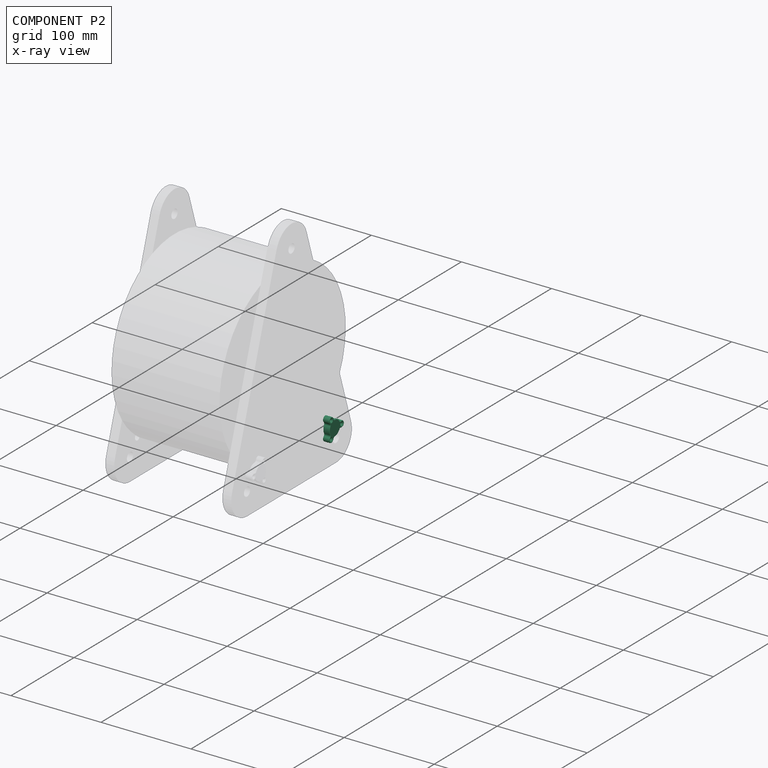
[diagram: component P2 — x-ray view]
COMPONENT P2 — same part as P1 (CADFS 00729353); its construction recipe is shown at P1.
Held by: FASTENED mate "Fastened 2" to P0.
PROVENANCE & LICENSES
Assembly (occurrences, transforms, mates, per-part STEP geometry): AutoMate dataset, Zenodo record 7776208, CC0.
Construction recipes: CADFS (HuggingFace VladPyatov/CADFS, CC-BY-4.0, layered over the ABC dataset), FeatureScript reconstruction programs keyed by ABC model id.
Join: ABC meta listings map ABC model id -> Onshape documentId; within a shared document, parts are matched by geometric signature (bounding-box dims + volume at 0.1% relative tolerance, exact B-rep face/solid counts).
Verification: 5 of this assembly's 5 components carry a recipe attachment, and every attachment is mesh-verified: the CADFS STEP and the AutoMate member STEP were compared as meshes in their shared local frame (symmetric sampled-point-to-mesh distance); worst across the 5 attachments: below the mesh-comparison resolution (tessellation chordal tolerance ~0.543 mm) on a 362 mm part.
Renders: orthographic iso camera (az 35 / el 25); the floor grid conveys scale (grid pitch printed in each image; no ruler). In the exploded view each component is displaced by its stored offset vector: the offsets alone carry the explosion direction (mate normal/axis signs are not orientation cues and do not encode it), and separation distances are assigned per mate-chain, not proportionally to assembly-order depth.
